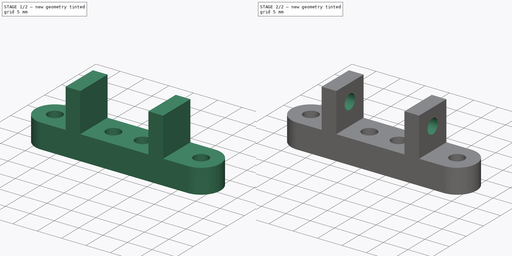
[diagram: build sequence overview — one tinted view per stage of 2, left to right]
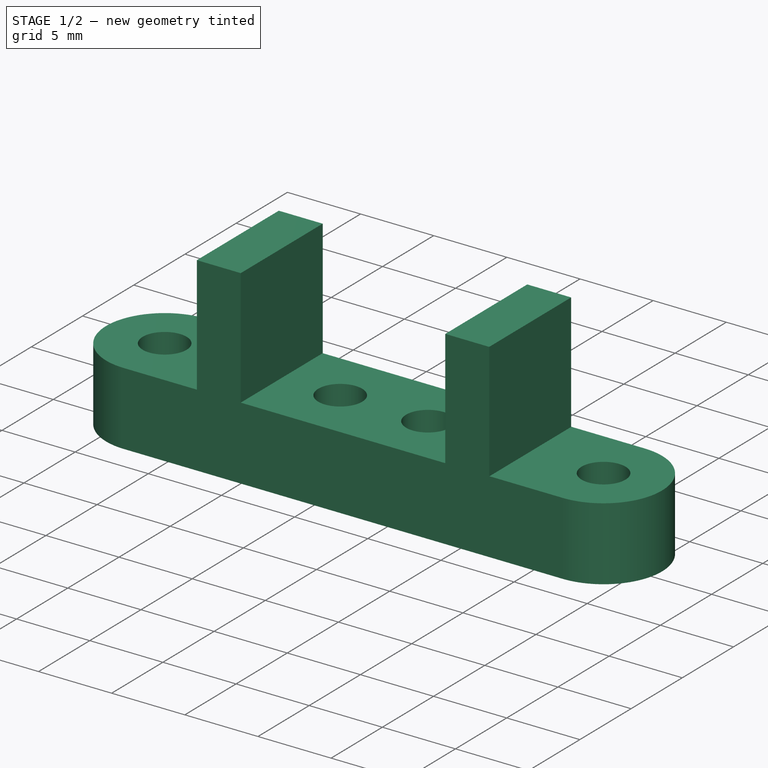
[diagram: stage 1 of 2 — iso view after this stage's code; geometry added in this stage tinted green]
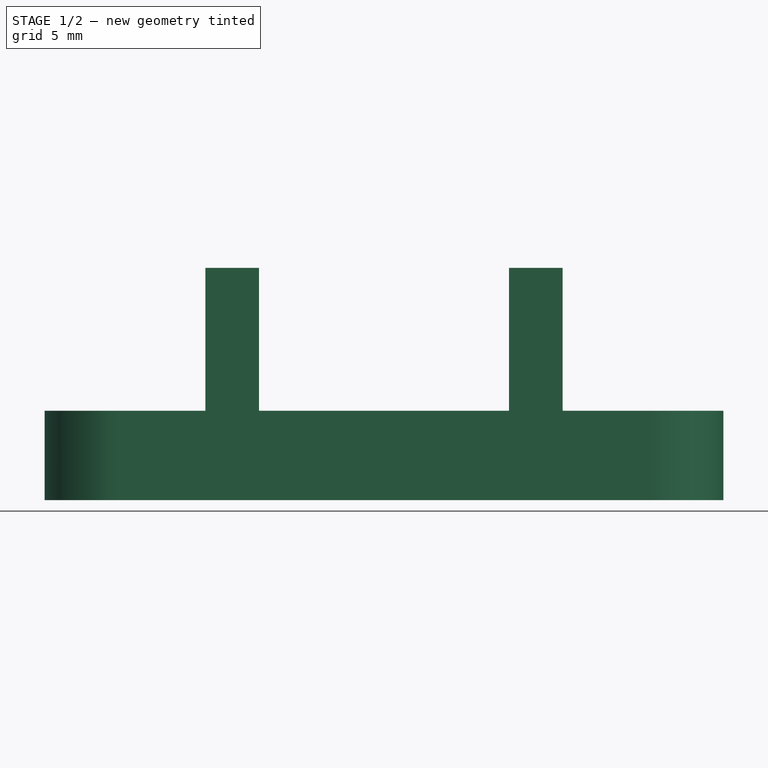
[diagram: stage 1 of 2 — front view after this stage's code; geometry added in this stage tinted green]
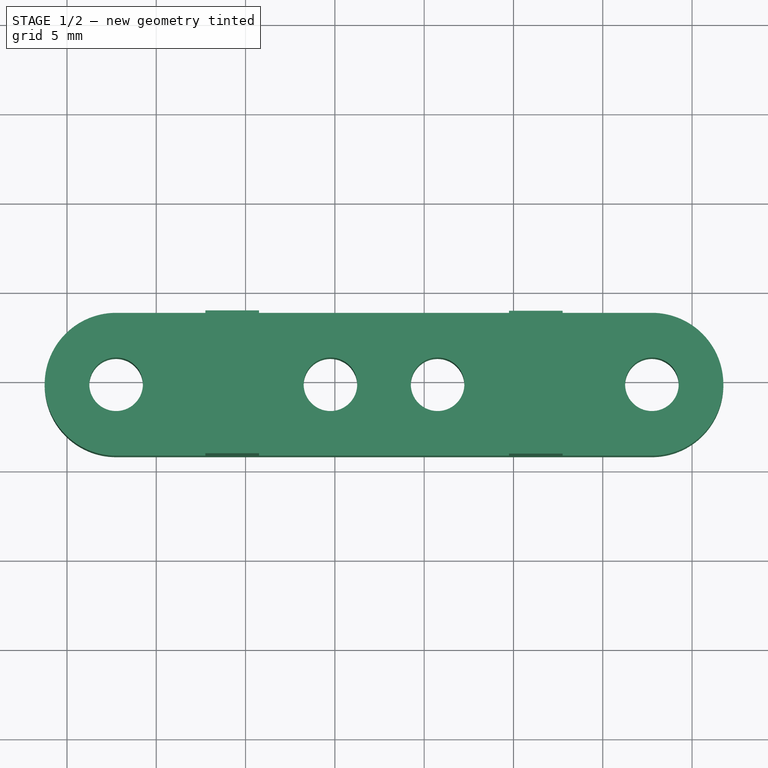
[diagram: stage 1 of 2 — top view after this stage's code; geometry added in this stage tinted green]
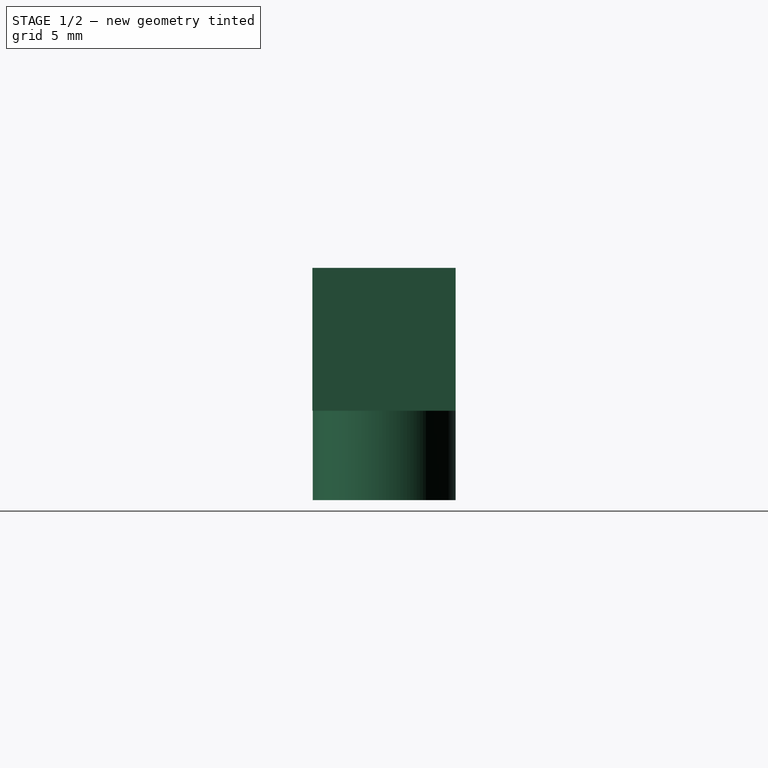
[diagram: stage 1 of 2 — right view after this stage's code; geometry added in this stage tinted green]
FCSTD DOCUMENT  (FreeCAD 0.18R16117 (Git))
Label: SupportCamera
License: All rights reserved
LicenseURL: http://en.wikipedia.org/wiki/All_rights_reserved
objects: Sketcher::SketchObject×3, PartDesign::Pad×2, PartDesign::Pocket×1, PartDesign::Body×1
note: 10 computed .brp shape members not serialized (recipe doc carries the construction recipe); baked Part::Feature solids carry a one-line shape summary decoded from their .brp

FEATURE [Sketcher::SketchObject] Sketch
  sketch-geometry (8):
    g0: LineSegment StartX=32.7502 StartY=18.8125 StartZ=0 EndX=62.7502 EndY=18.8125 EndZ=0
    g1: LineSegment StartX=32.7502 StartY=10.8125 StartZ=0 EndX=62.7502 EndY=10.8125 EndZ=0
    g2: ArcOfCircle CenterX=32.7502 CenterY=14.8125 CenterZ=0 NormalX=0 NormalY=0 NormalZ=1 AngleXU=0 Radius=4 StartAngle=1.5708 EndAngle=4.71239
    g3: ArcOfCircle CenterX=62.7502 CenterY=14.8125 CenterZ=0 NormalX=0 NormalY=0 NormalZ=1 AngleXU=0 Radius=4 StartAngle=4.71239 EndAngle=7.85398
    g4: Circle CenterX=32.7502 CenterY=14.8125 CenterZ=0 NormalX=0 NormalY=0 NormalZ=1 AngleXU=0 Radius=1.5
    g5: Circle CenterX=62.7502 CenterY=14.8125 CenterZ=0 NormalX=0 NormalY=0 NormalZ=1 AngleXU=0 Radius=1.5
    g6: Circle CenterX=50.7502 CenterY=14.8125 CenterZ=0 NormalX=0 NormalY=0 NormalZ=1 AngleXU=0 Radius=1.5
    g7: Circle CenterX=44.7502 CenterY=14.8125 CenterZ=0 NormalX=0 NormalY=0 NormalZ=1 AngleXU=0 Radius=1.5
  constraints (22):
    c: Radius(g2) = 4
    c: Radius(g3) = 4
    c: Distance(g0) = 30
    c: Distance(g1) = 30
    c: Distance(g0,g1) = 8
    c: Distance(g0,g1) = 8
    c: Coincident(g2,g1)
    c: Coincident(g2,g0)
    c: Parallel(g0,g1)
    c: Coincident(g0,g3)
    c: Coincident(g3,g1)
    c: Radius(g4) = 1.5
    c: Radius(g5) = 1.5
    c: Radius(g6) = 1.5
    c: Radius(g7) = 1.5
    c: Distance(g6,g3) = 12
    c: Distance(g7,g2) = 12
    c: Distance(g7,g1) = 4
    c: Distance(g6,g1) = 4
    c: Parallel(g-1,g0)
    c: Coincident(g3,g5)
    c: Coincident(g4,g2)
FEATURE [PartDesign::Pad] Pad
  Length = 5
  Length2 = 100
  Profile = -> Sketch
  Type = 0
FEATURE [Sketcher::SketchObject] Sketch001
  ExternalGeometry = -> [Pad]
  MapMode = 5
  Placement = pos=(0,0,5) rot=(0,0,1;0rad)
  Support = -> [Pad]
  sketch-geometry (8):
    g0: LineSegment StartX=37.7502 StartY=18.8125 StartZ=0 EndX=40.7502 EndY=18.8125 EndZ=0
    g1: LineSegment StartX=40.7502 StartY=18.8125 StartZ=0 EndX=40.7502 EndY=10.8125 EndZ=0
    g2: LineSegment StartX=40.7502 StartY=10.8125 StartZ=0 EndX=37.7502 EndY=10.8125 EndZ=0
    g3: LineSegment StartX=37.7502 StartY=10.8125 StartZ=0 EndX=37.7502 EndY=18.8125 EndZ=0
    g4: LineSegment StartX=54.7502 StartY=18.7886 StartZ=0 EndX=57.7502 EndY=18.7886 EndZ=0
    g5: LineSegment StartX=57.7502 StartY=18.7886 StartZ=0 EndX=57.7502 EndY=10.7886 EndZ=0
    g6: LineSegment StartX=57.7502 StartY=10.7886 StartZ=0 EndX=54.7502 EndY=10.7886 EndZ=0
    g7: LineSegment StartX=54.7502 StartY=10.7886 StartZ=0 EndX=54.7502 EndY=18.7886 EndZ=0
  constraints (24):
    c: Coincident(g0,g1)
    c: Coincident(g1,g2)
    c: Coincident(g2,g3)
    c: Coincident(g3,g0)
    c: Horizontal(g0)
    c: Horizontal(g2)
    c: Vertical(g1)
    c: Vertical(g3)
    c: Coincident(g4,g5)
    c: Coincident(g5,g6)
    c: Coincident(g6,g7)
    c: Coincident(g7,g4)
    c: Horizontal(g4)
    c: Horizontal(g6)
    c: Vertical(g5)
    c: Vertical(g7)
    c: Distance(g0) = 3
    c: Distance(g4) = 3
    c: Distance(g5) = 8
    c: Distance(g3) = 8
    c: Distance(g0,g4) = 14
    c: Distance(g-4,g7) = 4
    c: Distance(g-3,g1) = 4
    c: Distance(g1,g-5) = 8
FEATURE [PartDesign::Pad] Pad001
  BaseFeature = -> Pad
  Length = 8
  Length2 = 100
  Profile = -> Sketch001
  Type = 0
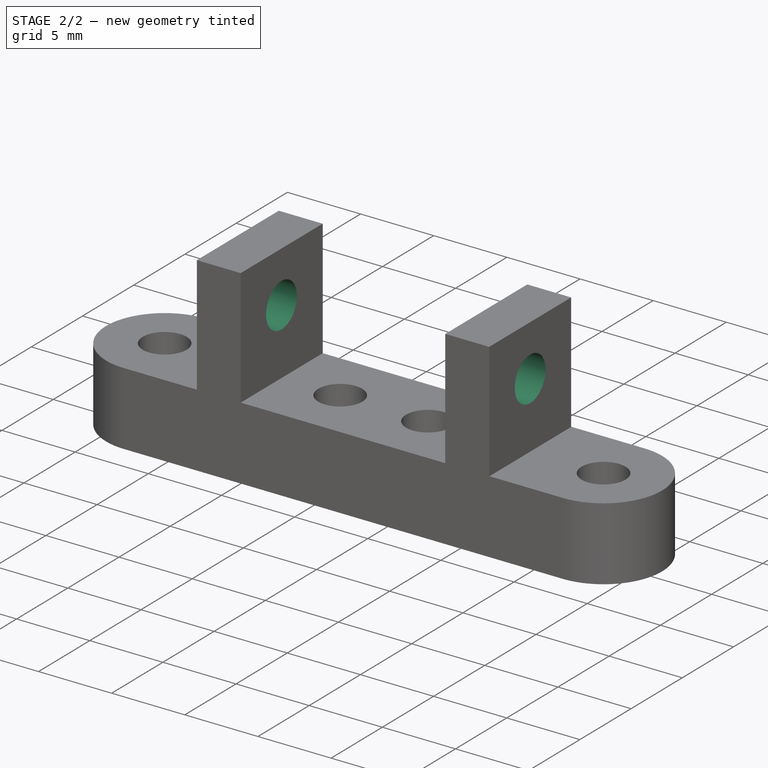
[diagram: stage 2 of 2 — iso view after this stage's code; geometry added in this stage tinted green]
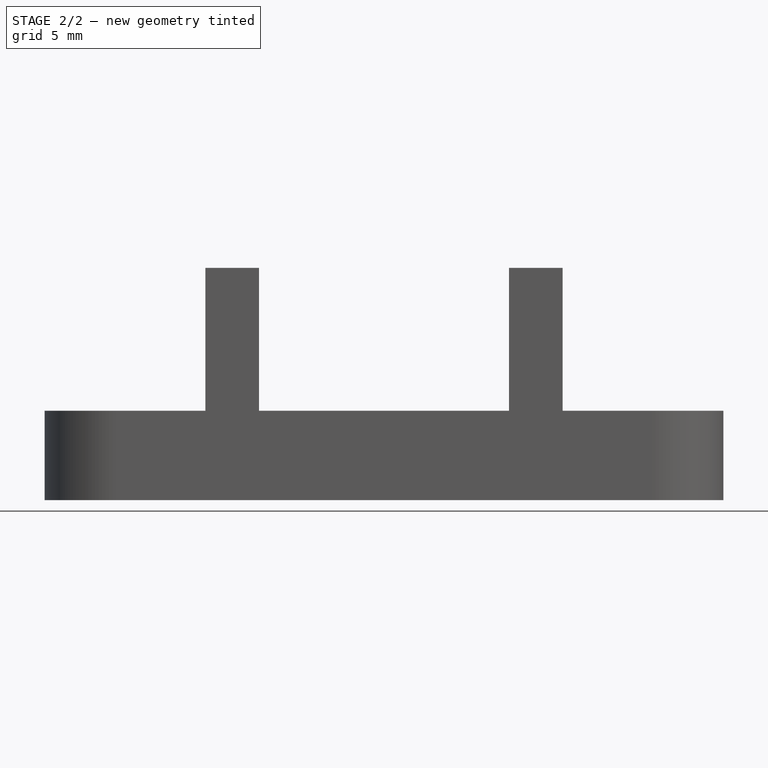
[diagram: stage 2 of 2 — front view after this stage's code; geometry added in this stage tinted green]
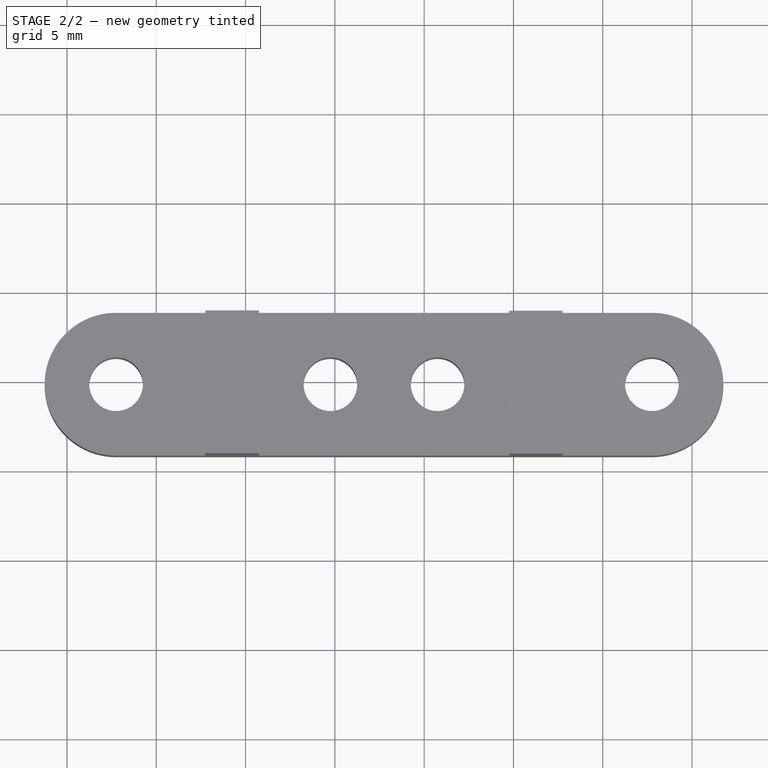
[diagram: stage 2 of 2 — top view after this stage's code; geometry added in this stage tinted green]
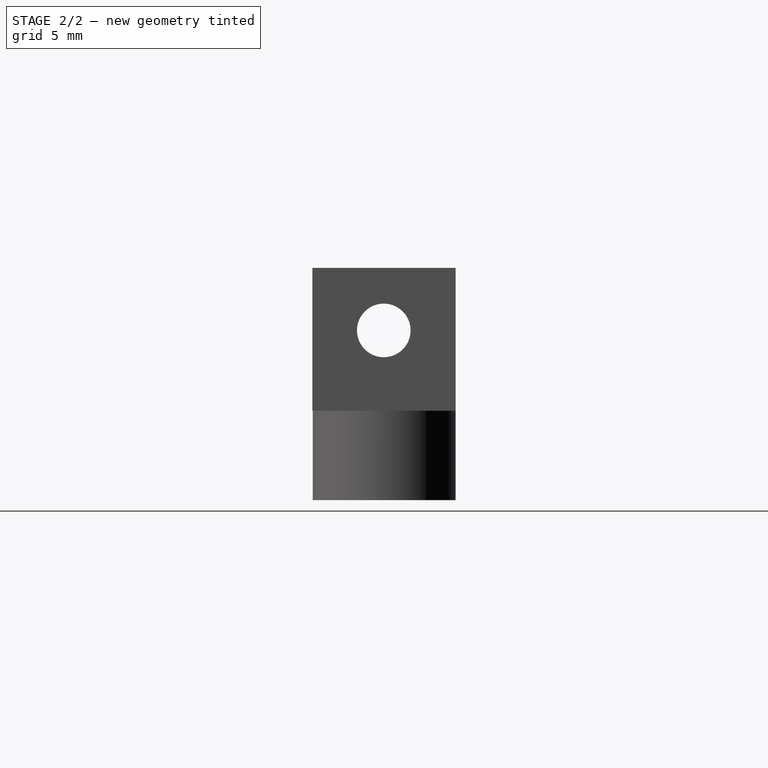
[diagram: stage 2 of 2 — right view after this stage's code; geometry added in this stage tinted green]
FEATURE [Sketcher::SketchObject] Sketch002
  ExternalGeometry = -> [Pad001]
  MapMode = 5
  Placement = pos=(57.7502,0,0) rot=(0.57735,0.57735,0.57735;2.0944rad)
  Support = -> [Pad001]
  sketch-geometry (1):
    g0: Circle CenterX=14.7886 CenterY=9.5 CenterZ=0 NormalX=0 NormalY=0 NormalZ=1 AngleXU=0 Radius=1.5
  constraints (3):
    c: Radius(g0) = 1.5
    c: Distance(g0,g-3) = 3.5
    c: Distance(g0,g-5) = 4
FEATURE [PartDesign::Pocket] Pocket
  BaseFeature = -> Pad001
  Length = 23
  Length2 = 100
  Profile = -> Sketch002
  Type = 0
FEATURE [PartDesign::Body] Body
  Group = -> [Pad,Sketch001,Pad001,Sketch002,Pocket]
  Origin = -> Origin
  Tip = -> Pocket
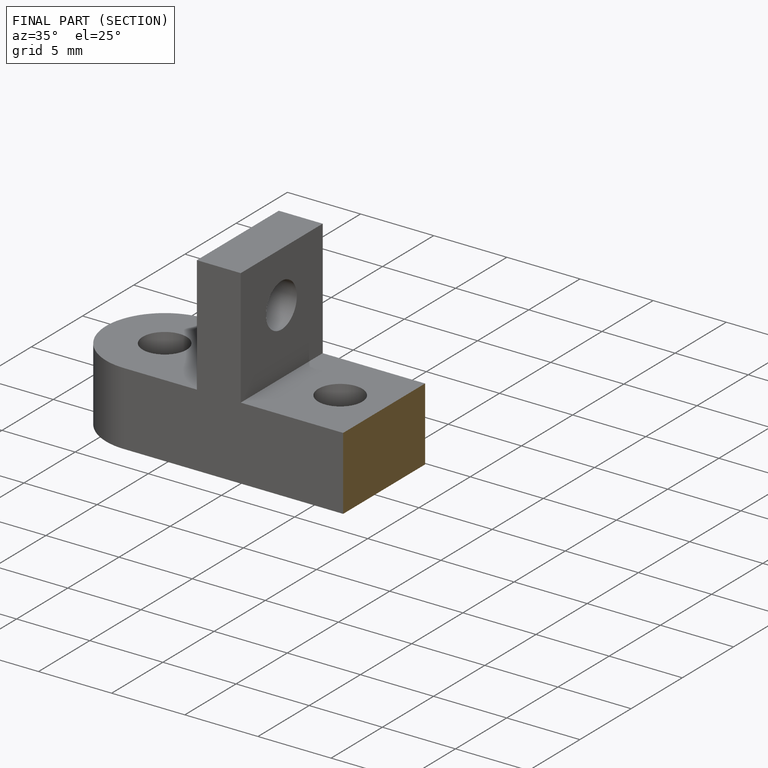
[diagram: finished part — half-section view (interior)]
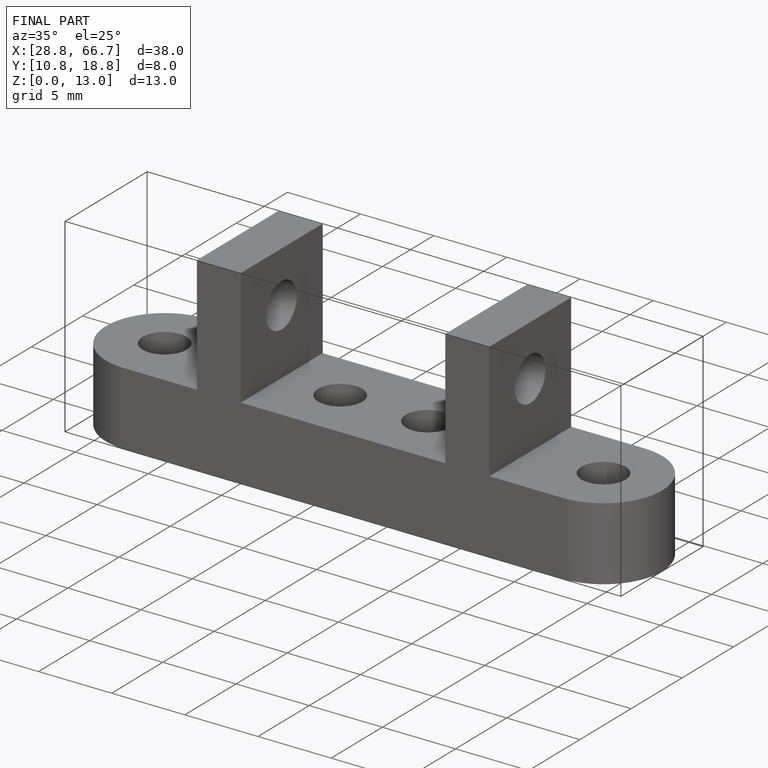
[diagram: finished part — iso view with bounding-box wireframe]
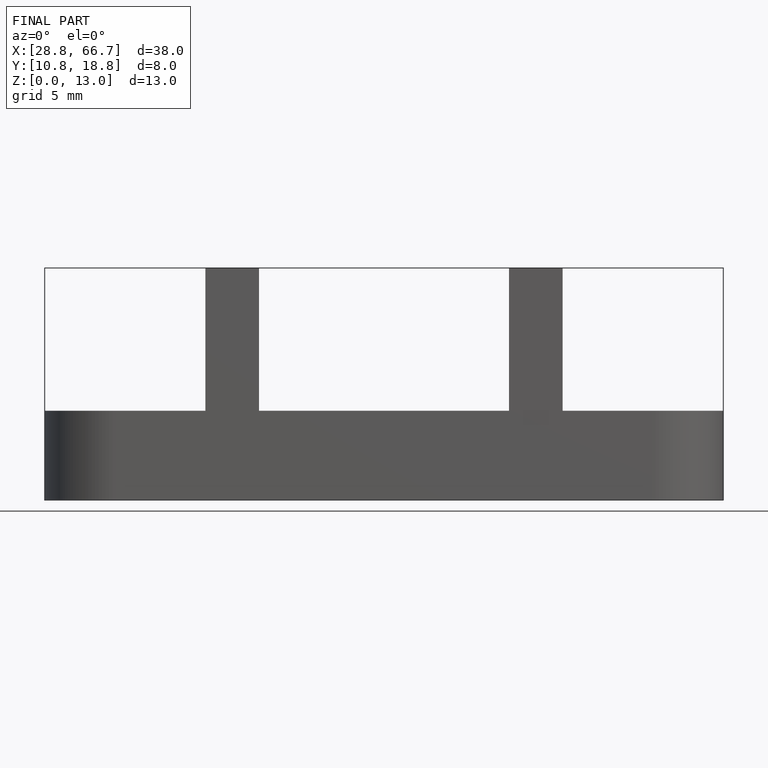
[diagram: finished part — front view with bounding-box wireframe]
